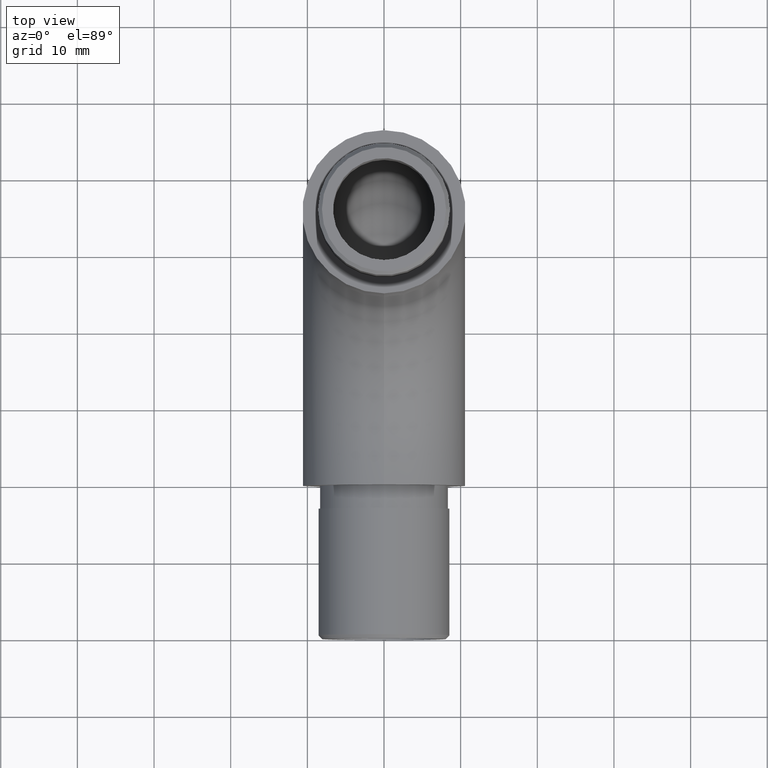
[diagram: clean part render]
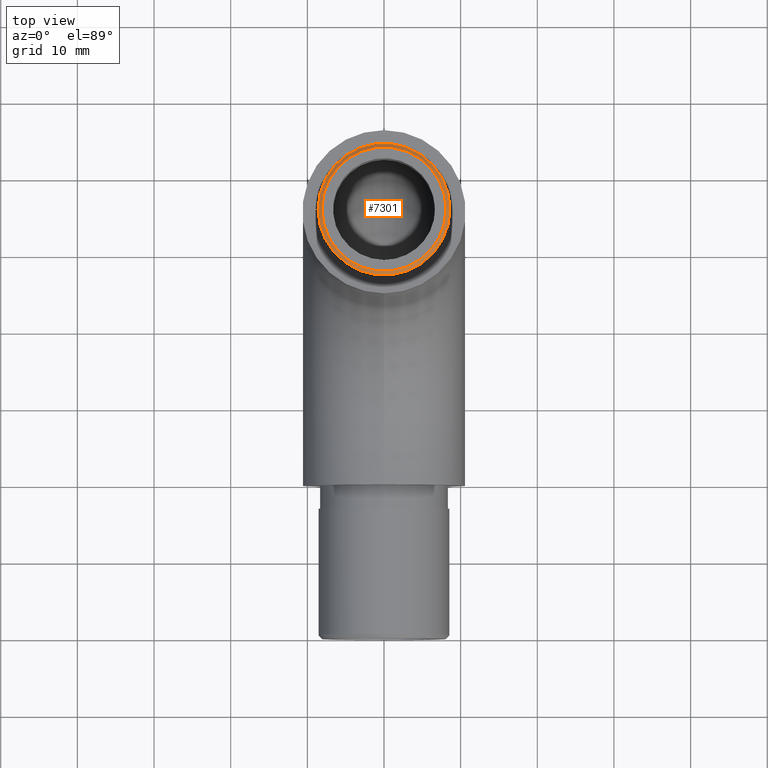
[diagram: same view with one face highlighted and labeled with its STEP entity id]
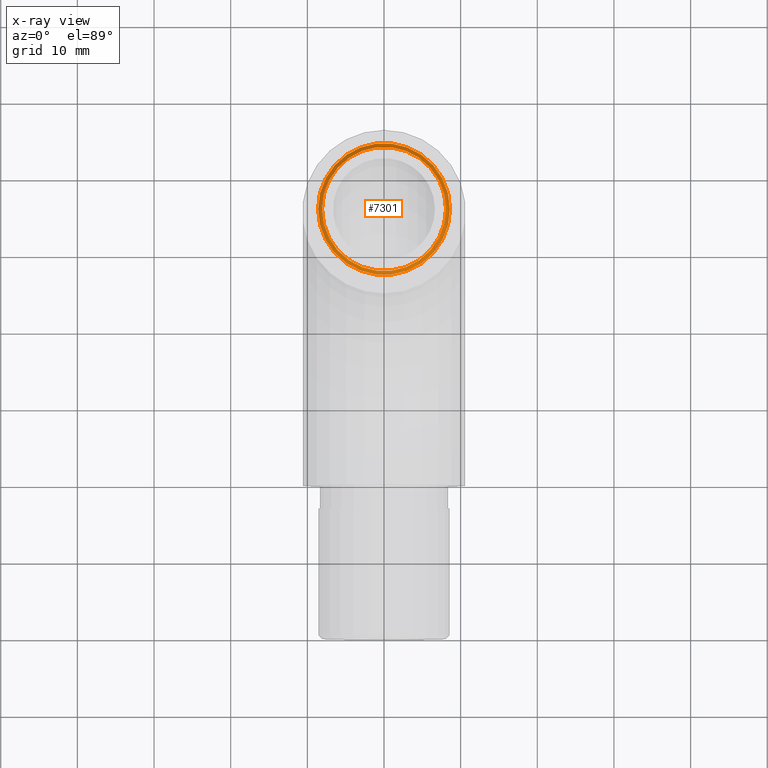
[diagram: x-ray of the same camera — body ghosted, the highlighted face saturated]
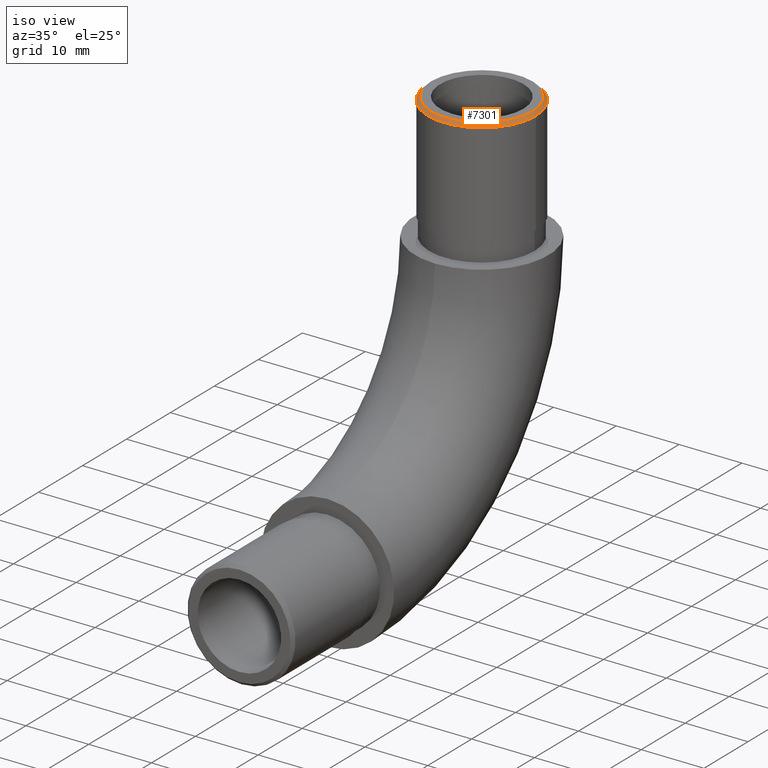
[diagram: same view with one face highlighted and labeled with its STEP entity id]
A machine part, top view. The second image highlights one B-rep face of the part: STEP entity #7301.
The next image is the same camera in x-ray: the body ghosted, the highlighted face saturated — about 0% of this face is hidden behind the body in this view.
A second angle (iso view) of the same face is appended — the face is thin or edge-on in the first view.
In plain terms, the highlighted conical surface has half-angle 45 deg.
Its self-contained STEP definition (entity closure, byte-faithful):
#63 = CARTESIAN_POINT ( 'NONE',  ( 8.600000000000001400, 35.14999999999999900, 65.29999999999999700 ) ) ;
#138 = CONICAL_SURFACE ( 'NONE', #633, 8.099999999999996100, 0.7853981633974396200 ) ;
#567 = AXIS2_PLACEMENT_3D ( 'NONE', #7629, #4843, #1855 ) ;
#633 = AXIS2_PLACEMENT_3D ( 'NONE', #7674, #12688, #8675 ) ;
#1533 = EDGE_LOOP ( 'NONE', ( #1840 ) ) ;
#1840 = ORIENTED_EDGE ( 'NONE', *, *, #10320, .F. ) ;
#1855 = DIRECTION ( 'NONE',  ( 1.000000000000000000, 0.0000000000000000000, 0.0000000000000000000 ) ) ;
#2831 = EDGE_CURVE ( 'NONE', #8609, #8609, #11985, .T. ) ;
#3661 = FACE_BOUND ( 'NONE', #7095, .T. ) ;
#3759 = AXIS2_PLACEMENT_3D ( 'NONE', #3872, #5940, #9834 ) ;
#3872 = CARTESIAN_POINT ( 'NONE',  ( 0.0000000000000000000, 35.14999999999999900, 65.29999999999999700 ) ) ;
#4843 = DIRECTION ( 'NONE',  ( 0.0000000000000000000, 0.0000000000000000000, 1.000000000000000000 ) ) ;
#5940 = DIRECTION ( 'NONE',  ( 0.0000000000000000000, 0.0000000000000000000, -1.000000000000000000 ) ) ;
#6002 = CARTESIAN_POINT ( 'NONE',  ( 8.099999999999996100, 35.14999999999999900, 65.80000000000001100 ) ) ;
#7095 = EDGE_LOOP ( 'NONE', ( #8968 ) ) ;
#7301 = ADVANCED_FACE ( 'NONE', ( #10557, #3661 ), #138, .T. ) ;
#7629 = CARTESIAN_POINT ( 'NONE',  ( 0.0000000000000000000, 35.14999999999999900, 65.80000000000001100 ) ) ;
#7674 = CARTESIAN_POINT ( 'NONE',  ( 0.0000000000000000000, 35.14999999999999900, 65.80000000000001100 ) ) ;
#8273 = CIRCLE ( 'NONE', #3759, 8.600000000000001400 ) ;
#8609 = VERTEX_POINT ( 'NONE', #6002 ) ;
#8675 = DIRECTION ( 'NONE',  ( -1.000000000000000000, 0.0000000000000000000, 0.0000000000000000000 ) ) ;
#8968 = ORIENTED_EDGE ( 'NONE', *, *, #2831, .F. ) ;
#9834 = DIRECTION ( 'NONE',  ( 1.000000000000000000, 0.0000000000000000000, 0.0000000000000000000 ) ) ;
#10260 = VERTEX_POINT ( 'NONE', #63 ) ;
#10320 = EDGE_CURVE ( 'NONE', #10260, #10260, #8273, .T. ) ;
#10557 = FACE_OUTER_BOUND ( 'NONE', #1533, .T. ) ;
#11985 = CIRCLE ( 'NONE', #567, 8.099999999999996100 ) ;
#12688 = DIRECTION ( 'NONE',  ( 0.0000000000000000000, 0.0000000000000000000, -1.000000000000000000 ) ) ;